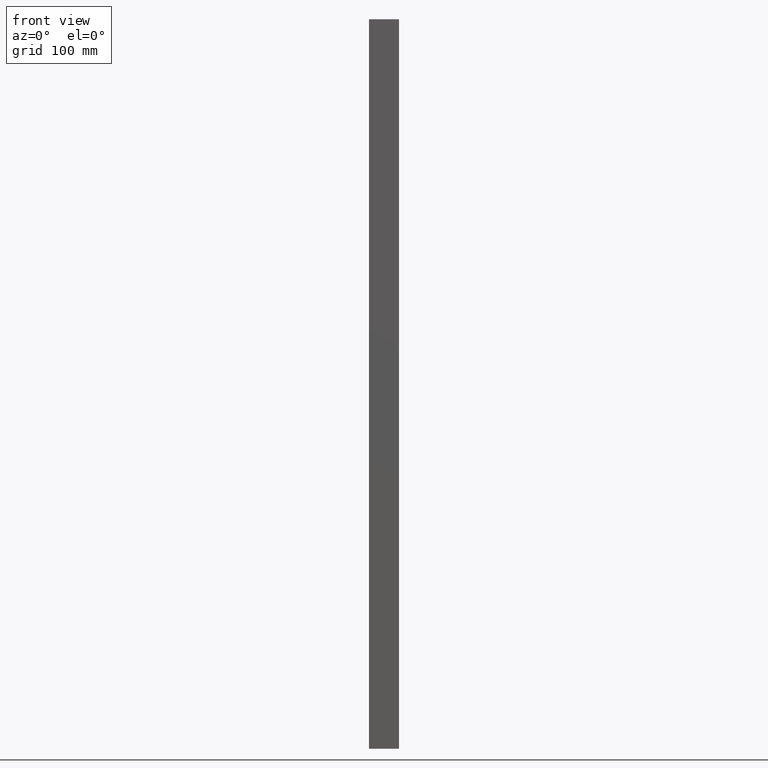
[diagram: clean part render]
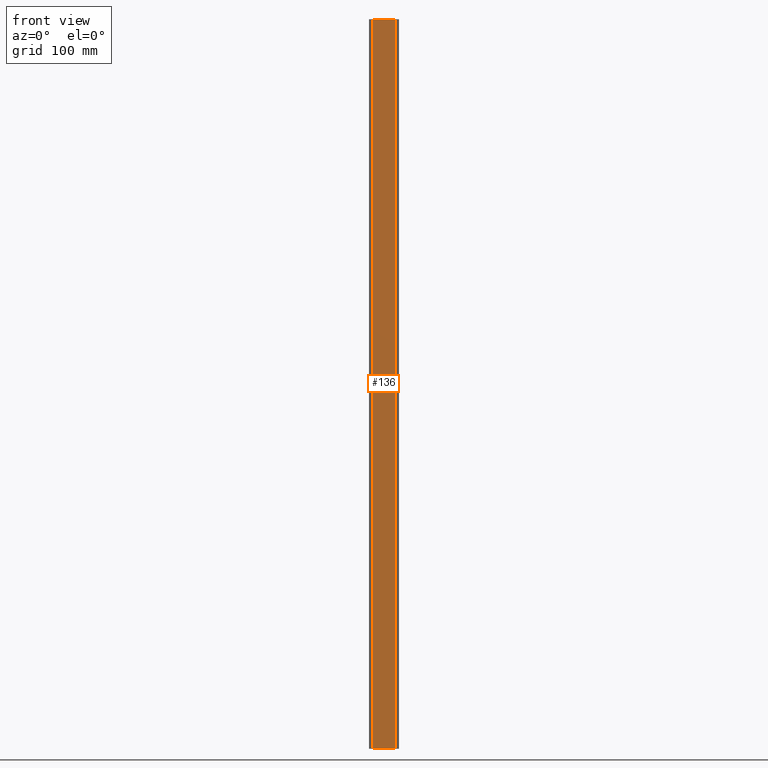
[diagram: same view with one face highlighted and labeled with its STEP entity id]
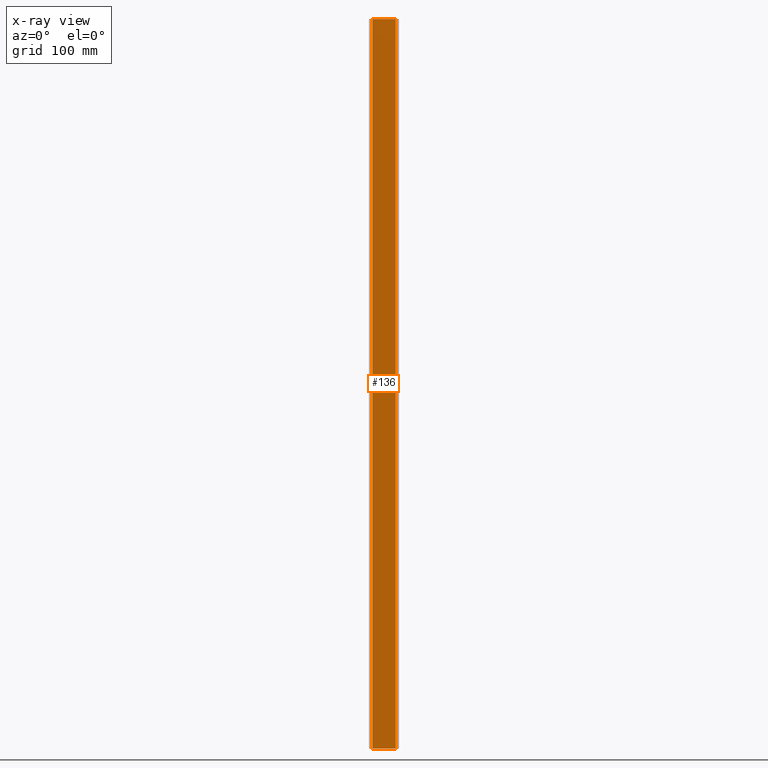
[diagram: x-ray of the same camera — body ghosted, the highlighted face saturated]
A machine part, front view. The second image highlights one B-rep face of the part: STEP entity #136.
The next image is the same camera in x-ray: the body ghosted, the highlighted face saturated — about 0% of this face is hidden behind the body in this view.
In plain terms, the highlighted planar face has unit normal (0, -1, 0).
Its self-contained STEP definition (entity closure, byte-faithful):
#19 = ORIENTED_EDGE ( 'NONE', *, *, #1071, .T. ) ;
#30 = LINE ( 'NONE', #859, #719 ) ;
#55 = CARTESIAN_POINT ( 'NONE',  ( -9.799999995989534100, -5.499999996275333200, 509.6000000000000800 ) ) ;
#118 = EDGE_CURVE ( 'NONE', #980, #601, #30, .T. ) ;
#136 = ADVANCED_FACE ( 'NONE', ( #1509 ), #1011, .T. ) ;
#243 = DIRECTION ( 'NONE',  ( 0.0000000000000000000, 0.0000000000000000000, 1.000000000000000000 ) ) ;
#251 = LINE ( 'NONE', #55, #1371 ) ;
#284 = DIRECTION ( 'NONE',  ( 0.0000000000000000000, -1.000000000000000000, 0.0000000000000000000 ) ) ;
#335 = CARTESIAN_POINT ( 'NONE',  ( 9.800000003972000300, -5.499999996275333200, -99.99999999999997200 ) ) ;
#379 = ORIENTED_EDGE ( 'NONE', *, *, #798, .T. ) ;
#568 = DIRECTION ( 'NONE',  ( 1.000000000000000000, 0.0000000000000000000, 0.0000000000000000000 ) ) ;
#601 = VERTEX_POINT ( 'NONE', #1244 ) ;
#637 = CARTESIAN_POINT ( 'NONE',  ( 9.800000003972000300, -5.499999996275333200, -99.99999999999997200 ) ) ;
#707 = ORIENTED_EDGE ( 'NONE', *, *, #118, .F. ) ;
#714 = CARTESIAN_POINT ( 'NONE',  ( 9.800000003972000300, -5.499999996275333200, 509.6000000000000800 ) ) ;
#719 = VECTOR ( 'NONE', #243, 1000.000000000000000 ) ;
#798 = EDGE_CURVE ( 'NONE', #1401, #1207, #999, .T. ) ;
#813 = DIRECTION ( 'NONE',  ( 0.0000000000000000000, 0.0000000000000000000, 1.000000000000000000 ) ) ;
#859 = CARTESIAN_POINT ( 'NONE',  ( -9.799999995989534100, -5.499999996275333200, -99.99999999999997200 ) ) ;
#909 = DIRECTION ( 'NONE',  ( 1.000000000000000000, 0.0000000000000000000, 0.0000000000000000000 ) ) ;
#975 = VECTOR ( 'NONE', #909, 1000.000000000000000 ) ;
#980 = VERTEX_POINT ( 'NONE', #1274 ) ;
#999 = LINE ( 'NONE', #335, #1179 ) ;
#1011 = PLANE ( 'NONE',  #1293 ) ;
#1071 = EDGE_CURVE ( 'NONE', #980, #1401, #1201, .T. ) ;
#1179 = VECTOR ( 'NONE', #813, 1000.000000000000000 ) ;
#1201 = LINE ( 'NONE', #1538, #975 ) ;
#1207 = VERTEX_POINT ( 'NONE', #714 ) ;
#1244 = CARTESIAN_POINT ( 'NONE',  ( -9.799999995989534100, -5.499999996275333200, 509.6000000000000800 ) ) ;
#1271 = EDGE_LOOP ( 'NONE', ( #1324, #707, #19, #379 ) ) ;
#1274 = CARTESIAN_POINT ( 'NONE',  ( -9.799999995989534100, -5.499999996275333200, -99.99999999999997200 ) ) ;
#1293 = AXIS2_PLACEMENT_3D ( 'NONE', #1510, #284, #1515 ) ;
#1324 = ORIENTED_EDGE ( 'NONE', *, *, #1605, .F. ) ;
#1371 = VECTOR ( 'NONE', #568, 1000.000000000000000 ) ;
#1401 = VERTEX_POINT ( 'NONE', #637 ) ;
#1509 = FACE_OUTER_BOUND ( 'NONE', #1271, .T. ) ;
#1510 = CARTESIAN_POINT ( 'NONE',  ( -9.799999995989534100, -5.499999996275333200, -99.99999999999997200 ) ) ;
#1515 = DIRECTION ( 'NONE',  ( 0.0000000000000000000, -0.0000000000000000000, -1.000000000000000000 ) ) ;
#1538 = CARTESIAN_POINT ( 'NONE',  ( -9.799999995989534100, -5.499999996275333200, -99.99999999999997200 ) ) ;
#1605 = EDGE_CURVE ( 'NONE', #601, #1207, #251, .T. ) ;